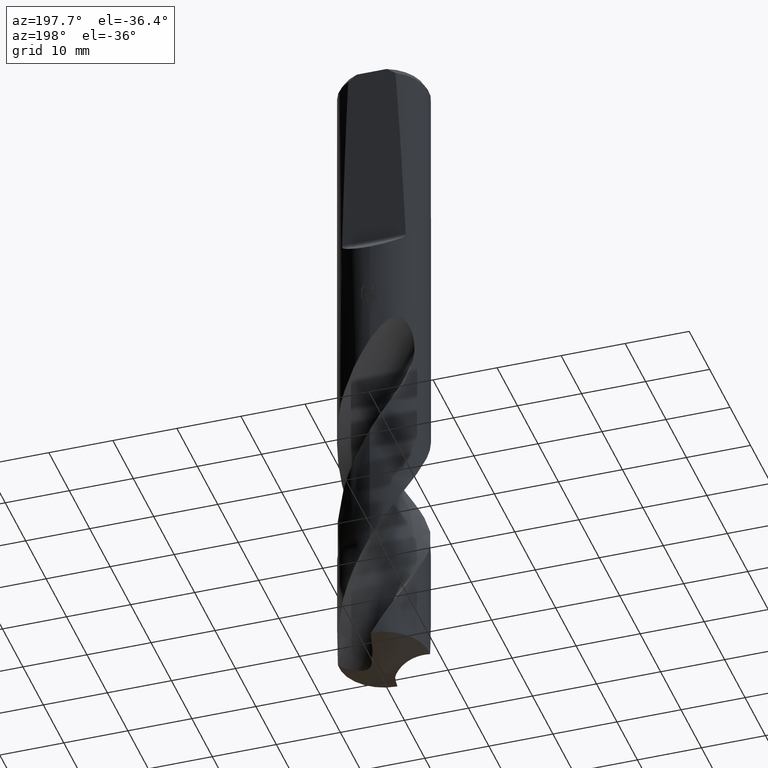
[diagram: clean part render]
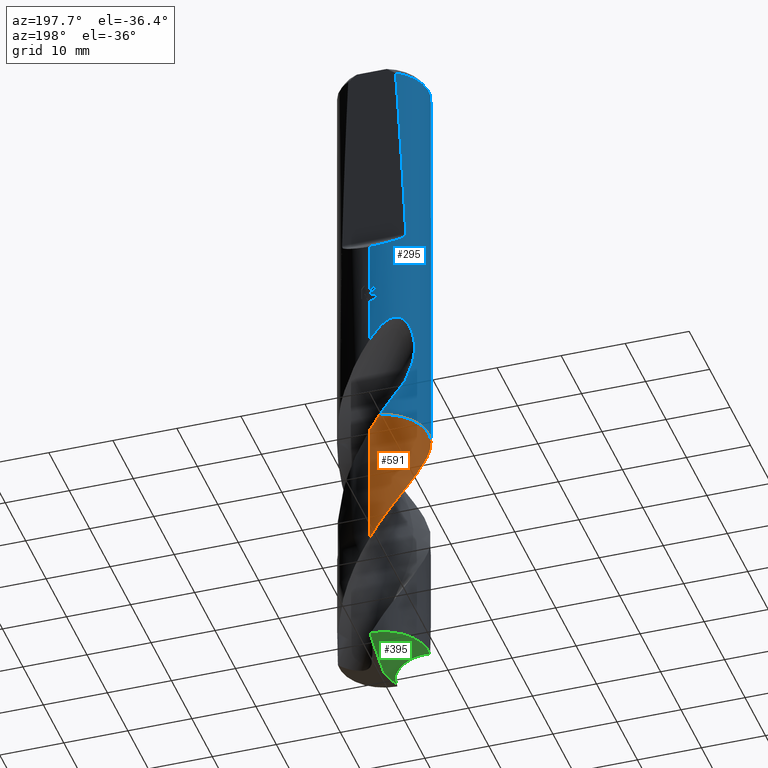
[diagram: same view with three faces highlighted in distinct colors, each labeled with its STEP entity id]
A machine part, auxiliary view with three faces highlighted in distinct colors.
Their STEP definitions:

[orange] entity #591 — the highlighted conical surface has half-angle 0 deg.
#397=EDGE_CURVE('',#583,#485,#922,.T.);
#411=EDGE_CURVE('',#497,#415,#936,.T.);
#415=VERTEX_POINT('',#940);
#455=EDGE_CURVE('',#609,#583,#982,.T.);
#485=VERTEX_POINT('',#1014);
#497=VERTEX_POINT('',#1026);
#513=EDGE_CURVE('',#485,#497,#1042,.T.);
#583=VERTEX_POINT('',#1120);
#591=ADVANCED_FACE('',(#1128),#1129,.T.);
#609=VERTEX_POINT('',#1149);
#619=VERTEX_POINT('',#1160);
#629=EDGE_CURVE('',#415,#619,#1172,.T.);
#729=EDGE_CURVE('',#619,#609,#1286,.T.);
#922=B_SPLINE_CURVE_WITH_KNOTS('',3,(#2884,#2885,#2886,#2887),.UNSPECIFIED.,.F.,.F.,(4,4),(0.0,0.0155652275913968),.UNSPECIFIED.);
#936=B_SPLINE_CURVE_WITH_KNOTS('',3,(#2918,#2919,#2920,#2921),.UNSPECIFIED.,.F.,.F.,(4,4),(0.0,0.0122954155567094),.UNSPECIFIED.);
#940=CARTESIAN_POINT('',(-1.4810754473263,6.8414191293665,-64.3050000000002));
#982=B_SPLINE_CURVE_WITH_KNOTS('',3,(#3571,#3572,#3573,#3574,#3575,#3576,#3577,#3578,#3579,#3580,#3581,#3582,#3583,#3584,#3585,#3586,#3587,#3588,#3589,#3590,#3591,#3592,#3593,#3594,#3595,#3596,#3597,#3598,#3599,#3600,#3601,#3602,#3603,#3604,#3605,#3606,#3607,#3608,#3609,#3610,#3611,#3612,#3613,#3614,#3615,#3616,#3617,#3618,#3619,#3620,#3621,#3622,#3623,#3624,#3625,#3626,#3627,#3628),.UNSPECIFIED.,.F.,.F.,(4,2,2,2,2,2,2,2,2,2,2,2,2,2,2,2,2,2,2,2,2,2,2,2,2,2,2,2,4),(0.0,3.39543451186766,5.60586435712491,6.94543109124275,8.28249579723188,10.0692441872911,10.9624324038601,11.853958782141,13.6404138657621,14.5334724137825,15.4248235927908,17.2110025318939,18.1039026545895,18.9950894885276,20.780961848582,23.4763709606844,24.7640418770248,26.10130580234,29.1952198764106,29.2863759270751,31.0537916685812,32.0137325630353,33.8105038613855,35.3858840478238,36.762907054197,38.6016613054026,40.5538676187283,43.4931155662234,46.4199670524006),.UNSPECIFIED.);
#1014=CARTESIAN_POINT('',(-6.69136512047271,-2.05529385600241,-64.3));
#1026=CARTESIAN_POINT('',(-1.48391525789918,6.84080371867034,-64.3));
#1042=CIRCLE('',#3876,6.9999);
#1120=CARTESIAN_POINT('',(-6.69221624096409,-2.05252088138234,-64.305));
#1128=FACE_OUTER_BOUND('',#5041,.T.);
#1129=CONICAL_SURFACE('',#5042,6.99995,2.49052303929666E-006);
#1149=CARTESIAN_POINT('',(-1.19753568585419E-014,6.9999561201646,-86.8334854219192));
#1160=CARTESIAN_POINT('',(-2.90876926966706E-012,6.99990641540312,-66.8759260314849));
#1172=B_SPLINE_CURVE_WITH_KNOTS('',3,(#5201,#5202,#5203,#5204,#5205,#5206,#5207,#5208,#5209,#5210,#5211,#5212,#5213,#5214,#5215,#5216,#5217,#5218,#5219,#5220,#5221,#5222,#5223,#5224,#5225,#5226,#5227,#5228,#5229,#5230,#5231,#5232,#5233,#5234,#5235,#5236,#5237,#5238,#5239,#5240,#5241,#5242,#5243,#5244,#5245,#5246,#5247,#5248,#5249,#5250,#5251,#5252,#5253,#5254),.UNSPECIFIED.,.F.,.F.,(4,2,2,2,2,2,2,2,2,2,2,2,2,2,2,2,2,2,2,2,2,2,2,2,2,2,4),(0.0,2.42463853208289,5.11825905022911,6.46930595296713,6.63663382298346,9.32046325382395,10.6685583011662,13.3613726300013,14.0328891449474,16.7220268329545,18.0666143228101,20.7620736525515,20.9296503367868,23.6145475187379,24.9618937636407,27.6537494544557,28.2381702892375,30.5049659548148,32.4952036520931,34.2363155569914,35.7604490176893,38.4274434662067,38.9275706412503,40.8041618091299,42.2120666753582,42.3439555753108,46.4382558351308),.UNSPECIFIED.);
#1286=LINE('',#7273,#7274);
#2884=CARTESIAN_POINT('',(-6.69365429614609,-2.04782632152298,-64.3134637252525));
#2885=CARTESIAN_POINT('',(-6.692892648478,-2.05031585293088,-64.3089757729136));
#2886=CARTESIAN_POINT('',(-6.69212958988812,-2.05280503148311,-64.3044878646211));
#2887=CARTESIAN_POINT('',(-6.69136512047271,-2.05529385600239,-64.3));
#2918=CARTESIAN_POINT('',(-1.48391525789916,6.84080371867032,-64.3));
#2919=CARTESIAN_POINT('',(-1.48190274552023,6.84124028427352,-64.3035435400269));
#2920=CARTESIAN_POINT('',(-1.47989005086671,6.84167595952619,-64.3070870858739));
#2921=CARTESIAN_POINT('',(-1.47787717451917,6.84211074433113,-64.3106306381503));
#3571=CARTESIAN_POINT('',(6.9583441248581,0.762526747106406,-104.452208360137));
#3572=CARTESIAN_POINT('',(6.8965724731465,1.32619396896988,-103.472687657686));
#3573=CARTESIAN_POINT('',(6.76642297032104,1.88114929313659,-102.504053485187));
#3574=CARTESIAN_POINT('',(6.44258976692898,2.76223014663446,-100.887932040987));
#3575=CARTESIAN_POINT('',(6.2875547526993,3.09897667781708,-100.248879145296));
#3576=CARTESIAN_POINT('',(5.99679329681348,3.61782489749465,-99.2253850013758));
#3577=CARTESIAN_POINT('',(5.87774308892753,3.80818493869163,-98.8398216296364));
#3578=CARTESIAN_POINT('',(5.62206528999757,4.17639838479019,-98.068049319052));
#3579=CARTESIAN_POINT('',(5.48569682259757,4.35395366914166,-97.6817975770806));
#3580=CARTESIAN_POINT('',(5.14795689624682,4.75264060095409,-96.7812685415974));
#3581=CARTESIAN_POINT('',(4.94026036960512,4.9682072302933,-96.2677359069456));
#3582=CARTESIAN_POINT('',(4.6087761251296,5.27079180562885,-95.4955492524721));
#3583=CARTESIAN_POINT('',(4.49517272634505,5.36799885078512,-95.2383236875194));
#3584=CARTESIAN_POINT('',(4.26231298029882,5.5546896111787,-94.7238305147));
#3585=CARTESIAN_POINT('',(4.14310595269587,5.64416260759012,-94.4664869099562));
#3586=CARTESIAN_POINT('',(3.77637034750601,5.90152339891628,-93.6943404187504));
#3587=CARTESIAN_POINT('',(3.52083273284047,6.05746655148066,-93.1808283939844));
#3588=CARTESIAN_POINT('',(3.12347968656498,6.26624572927748,-92.4086390493914));
#3589=CARTESIAN_POINT('',(2.98894644463472,6.33151520734197,-92.1514113955914));
#3590=CARTESIAN_POINT('',(2.7163772615965,6.45314474206828,-91.6369189229459));
#3591=CARTESIAN_POINT('',(2.57839455645556,6.5095061239335,-91.3795783662102));
#3592=CARTESIAN_POINT('',(2.15844216534316,6.66558093205415,-90.6074465466122));
#3593=CARTESIAN_POINT('',(1.87174892358338,6.75171101192336,-90.0939292649778));
#3594=CARTESIAN_POINT('',(1.43450233310021,6.85303236319009,-89.3217360209678));
#3595=CARTESIAN_POINT('',(1.28783790441801,6.88209612304556,-89.0645096918993));
#3596=CARTESIAN_POINT('',(0.993381029597937,6.93071887842151,-88.5500211673798));
#3597=CARTESIAN_POINT('',(0.845640875389063,6.95029261238305,-88.292681052884));
#3598=CARTESIAN_POINT('',(0.399897442376058,6.99491233376827,-87.5205525994668));
#3599=CARTESIAN_POINT('',(0.100756444527773,7.00562500140607,-87.0070394265178));
#3600=CARTESIAN_POINT('',(-0.649811811535705,6.98434428305668,-85.7152076877901));
#3601=CARTESIAN_POINT('',(-1.09887139126849,6.92789907072751,-84.9369480253133));
#3602=CARTESIAN_POINT('',(-1.74994053370337,6.781116550219,-83.7887370186075));
#3603=CARTESIAN_POINT('',(-1.95806724356011,6.72396827548699,-83.418081810485));
#3604=CARTESIAN_POINT('',(-2.37617816127097,6.58810892458186,-82.6612800265029));
#3605=CARTESIAN_POINT('',(-2.5855670429479,6.50876937472588,-82.275008310254));
#3606=CARTESIAN_POINT('',(-3.26514558073665,6.21334815375009,-80.9977904555766));
#3607=CARTESIAN_POINT('',(-3.71502255014007,5.95522514027253,-80.1136189131772));
#3608=CARTESIAN_POINT('',(-4.14435589934795,5.64124678368307,-79.1953742257753));
#3609=CARTESIAN_POINT('',(-4.15662657615294,5.63221156727182,-79.1690680628286));
#3610=CARTESIAN_POINT('',(-4.40673273877093,5.44678500182605,-78.6317032109648));
#3611=CARTESIAN_POINT('',(-4.63342768785084,5.25533313926962,-78.1222636233691));
#3612=CARTESIAN_POINT('',(-4.9638429787239,4.93814795566479,-77.3344421822228));
#3613=CARTESIAN_POINT('',(-5.07619943061941,4.82257078298396,-77.0573611957841));
#3614=CARTESIAN_POINT('',(-5.38699613679301,4.47997612854282,-76.2608415622692));
#3615=CARTESIAN_POINT('',(-5.57488957668972,4.24388462832105,-75.7405359297806));
#3616=CARTESIAN_POINT('',(-5.89802100740167,3.77918406474504,-74.7661811055478));
#3617=CARTESIAN_POINT('',(-6.03656160451137,3.55370294372993,-74.3120319537748));
#3618=CARTESIAN_POINT('',(-6.27168036786091,3.11743077689997,-73.459021917121));
#3619=CARTESIAN_POINT('',(-6.37111409026999,2.9087885154888,-73.0604570583488));
#3620=CARTESIAN_POINT('',(-6.57863475306438,2.41150733362076,-72.1316725559482));
#3621=CARTESIAN_POINT('',(-6.67846569801678,2.11946547007004,-71.6023774282013));
#3622=CARTESIAN_POINT('',(-6.84398691366168,1.50530761197574,-70.5080631383464));
#3623=CARTESIAN_POINT('',(-6.90684860796691,1.18369603545176,-69.9433357756233));
#3624=CARTESIAN_POINT('',(-7.0074005795601,0.370679985095477,-68.5314639713178));
#3625=CARTESIAN_POINT('',(-7.01612042449978,-0.123041312285353,-67.6890097733981));
#3626=CARTESIAN_POINT('',(-6.93000893260131,-1.10179947442418,-65.9967192717047));
#3627=CARTESIAN_POINT('',(-6.83580988479547,-1.58438690469697,-65.1490645000824));
#3628=CARTESIAN_POINT('',(-6.69216221132454,-2.05269703331493,-64.3046823919303));
#3876=AXIS2_PLACEMENT_3D('',#7693,#7694,#7695);
#5041=EDGE_LOOP('',(#7792,#7793,#7794,#7795,#7796,#7797));
#5042=AXIS2_PLACEMENT_3D('',#7798,#7799,#7800);
#5201=CARTESIAN_POINT('',(-1.48231605309676,6.84115043153617,-64.3028157406));
#5202=CARTESIAN_POINT('',(-1.08543241818439,6.92714754141986,-65.0015974509227));
#5203=CARTESIAN_POINT('',(-0.682003755208056,6.97840455710284,-65.700664908244));
#5204=CARTESIAN_POINT('',(0.173781012570545,7.01225067306067,-67.1759475750082));
#5205=CARTESIAN_POINT('',(0.624926672226586,6.98652396856223,-67.9501317657106));
#5206=CARTESIAN_POINT('',(1.2940419208945,6.88297715681841,-69.1159808817254));
#5207=CARTESIAN_POINT('',(1.51573692310627,6.83757790469686,-69.505113896801));
#5208=CARTESIAN_POINT('',(1.76197796857612,6.77458596209132,-69.9427770648114));
#5209=CARTESIAN_POINT('',(1.78907024375654,6.76748184620537,-69.9910060956537));
#5210=CARTESIAN_POINT('',(2.24996377924964,6.6436657922574,-70.8128944952736));
#5211=CARTESIAN_POINT('',(2.67165487779869,6.48560065109283,-71.5855567979758));
#5212=CARTESIAN_POINT('',(3.27805754032637,6.18903665533498,-72.7478241649815));
#5213=CARTESIAN_POINT('',(3.47587110672552,6.08014387273307,-73.135994762318));
#5214=CARTESIAN_POINT('',(4.05197522475307,5.72569831990265,-74.3009636904454));
#5215=CARTESIAN_POINT('',(4.41223900687096,5.45292771607447,-75.0757725576103));
#5216=CARTESIAN_POINT('',(4.82647907246562,5.07116868457852,-76.0456177143773));
#5217=CARTESIAN_POINT('',(4.90730049759594,4.99300058620514,-76.239131077849));
#5218=CARTESIAN_POINT('',(5.30215135656877,4.59226431814843,-77.2080388815017));
#5219=CARTESIAN_POINT('',(5.58649076869326,4.24181181795913,-77.9820345746769));
#5220=CARTESIAN_POINT('',(5.95958154541472,3.67874967938536,-79.1449377634296));
#5221=CARTESIAN_POINT('',(6.07479259040593,3.48520888247137,-79.5322659701586));
#5222=CARTESIAN_POINT('',(6.39229690177596,2.88812735097526,-80.6971779192447));
#5223=CARTESIAN_POINT('',(6.56516861709821,2.47012254512069,-81.4726443882975));
#5224=CARTESIAN_POINT('',(6.70477911466411,2.011455211893,-82.2980597271048));
#5225=CARTESIAN_POINT('',(6.71278856143122,1.98456201138058,-82.3463686719297));
#5226=CARTESIAN_POINT('',(6.84637135283357,1.52597114453977,-83.1688064720322));
#5227=CARTESIAN_POINT('',(6.93023732537459,1.08317149850801,-83.9418958026259));
#5228=CARTESIAN_POINT('',(6.99153512673312,0.410697795647012,-85.1045476106341));
#5229=CARTESIAN_POINT('',(7.00113818912948,0.185170790760578,-85.4926334879896));
#5230=CARTESIAN_POINT('',(6.99723779937759,-0.491075698364233,-86.6574260453632));
#5231=CARTESIAN_POINT('',(6.95111911978041,-0.940539487979244,-87.432156280145));
#5232=CARTESIAN_POINT('',(6.842745625668,-1.47846298222499,-88.3768494685555));
#5233=CARTESIAN_POINT('',(6.82140609649966,-1.57398914046706,-88.545308084329));
#5234=CARTESIAN_POINT('',(6.70756639210208,-2.03767405293099,-89.3675288430942));
#5235=CARTESIAN_POINT('',(6.58721724489462,-2.39837013352996,-90.0206169922325));
#5236=CARTESIAN_POINT('',(6.30739064141976,-3.05408852586843,-91.2482663007094));
#5237=CARTESIAN_POINT('',(6.15485795535187,-3.35086777814885,-91.8211978553108));
#5238=CARTESIAN_POINT('',(5.83039641070186,-3.88472002709677,-92.8973663869935));
#5239=CARTESIAN_POINT('',(5.66355660039295,-4.12416993117457,-93.3991084554417));
#5240=CARTESIAN_POINT('',(5.32351121206953,-4.55247605841336,-94.340739751099));
#5241=CARTESIAN_POINT('',(5.1539941536259,-4.7435362526653,-94.7797163040395));
#5242=CARTESIAN_POINT('',(4.6602589049663,-5.24224323684162,-95.988491280008));
#5243=CARTESIAN_POINT('',(4.31636072510516,-5.52886371624123,-96.7561404935032));
#5244=CARTESIAN_POINT('',(3.87825237114848,-5.8280305512521,-97.6694820440116));
#5245=CARTESIAN_POINT('',(3.80823506019718,-5.87402163546336,-97.8136738463047));
#5246=CARTESIAN_POINT('',(3.47166867861132,-6.08654972837413,-98.4991447411816));
#5247=CARTESIAN_POINT('',(3.19491642830076,-6.23627326061032,-99.0400887649929));
#5248=CARTESIAN_POINT('',(2.69456939851324,-6.46488533956301,-99.9873985069313));
#5249=CARTESIAN_POINT('',(2.47525342892603,-6.55199282009987,-100.393111476526));
#5250=CARTESIAN_POINT('',(2.23100960097843,-6.63497990210307,-100.837174687493));
#5251=CARTESIAN_POINT('',(2.21005795033736,-6.64198820241712,-100.875207204823));
#5252=CARTESIAN_POINT('',(1.53759746463935,-6.86339118281307,-102.094155136431));
#5253=CARTESIAN_POINT('',(0.857809582310913,-6.98106162221675,-103.271362549127));
#5254=CARTESIAN_POINT('',(0.171648917684275,-6.99789515847855,-104.452208360137));
#7273=CARTESIAN_POINT('',(-8.5807405540139E-016,6.99995,-84.3761041800683));
#7274=VECTOR('',#8008,1.0);
#7693=CARTESIAN_POINT('',(0.0,0.0,-64.3));
#7694=DIRECTION('',(0.0,0.0,-1.0));
#7695=DIRECTION('',(0.0,1.0,0.0));
#7792=ORIENTED_EDGE('',*,*,#729,.T.);
#7793=ORIENTED_EDGE('',*,*,#455,.T.);
#7794=ORIENTED_EDGE('',*,*,#397,.T.);
#7795=ORIENTED_EDGE('',*,*,#513,.T.);
#7796=ORIENTED_EDGE('',*,*,#411,.T.);
#7797=ORIENTED_EDGE('',*,*,#629,.T.);
#7798=CARTESIAN_POINT('',(0.0,0.0,-84.3761041800683));
#7799=DIRECTION('',(0.0,-0.0,-1.0));
#7800=DIRECTION('',(0.0,1.0,0.0));
#8008=DIRECTION('',(-3.04991033826056E-022,2.49052303929409E-006,-0.999999999996899));

[blue] entity #295 — the highlighted cylindrical surface (partial cylindrical patch) has radius 7 mm, axis along (-0, -0, 1).
#293=EDGE_CURVE('',#743,#543,#810,.T.);
#295=ADVANCED_FACE('',(#812),#813,.T.);
#297=EDGE_CURVE('',#369,#449,#815,.T.);
#325=EDGE_CURVE('',#449,#635,#844,.T.);
#341=VERTEX_POINT('',#861);
#345=VERTEX_POINT('',#865);
#353=VERTEX_POINT('',#873);
#369=VERTEX_POINT('',#891);
#383=EDGE_CURVE('',#473,#527,#907,.T.);
#391=EDGE_CURVE('',#635,#643,#915,.T.);
#407=EDGE_CURVE('',#553,#555,#932,.T.);
#427=EDGE_CURVE('',#643,#345,#952,.T.);
#429=EDGE_CURVE('',#353,#743,#954,.T.);
#433=EDGE_CURVE('',#533,#611,#958,.T.);
#439=VERTEX_POINT('',#964);
#443=EDGE_CURVE('',#439,#353,#968,.T.);
#449=VERTEX_POINT('',#975);
#473=VERTEX_POINT('',#1002);
#481=EDGE_CURVE('',#751,#553,#1010,.T.);
#509=EDGE_CURVE('',#569,#473,#1038,.T.);
#527=VERTEX_POINT('',#1057);
#533=VERTEX_POINT('',#1064);
#541=EDGE_CURVE('',#575,#341,#1073,.T.);
#543=VERTEX_POINT('',#1075);
#553=VERTEX_POINT('',#1087);
#555=VERTEX_POINT('',#1089);
#557=VERTEX_POINT('',#1091);
#569=VERTEX_POINT('',#1104);
#575=VERTEX_POINT('',#1112);
#611=VERTEX_POINT('',#1151);
#635=VERTEX_POINT('',#1178);
#643=VERTEX_POINT('',#1188);
#693=EDGE_CURVE('',#341,#439,#1249,.T.);
#697=EDGE_CURVE('',#555,#557,#1253,.T.);
#709=EDGE_CURVE('',#345,#751,#1265,.T.);
#735=EDGE_CURVE('',#557,#575,#1293,.T.);
#739=EDGE_CURVE('',#611,#569,#1297,.T.);
#743=VERTEX_POINT('',#1301);
#745=EDGE_CURVE('',#543,#533,#1303,.T.);
#751=VERTEX_POINT('',#1310);
#763=EDGE_CURVE('',#369,#527,#1322,.T.);
#810=ELLIPSE('',#1841,7.80449902430002,7.0);
#812=FACE_OUTER_BOUND('',#1843,.T.);
#813=CYLINDRICAL_SURFACE('',#1844,7.0);
#815=B_SPLINE_CURVE_WITH_KNOTS('',3,(#1847,#1848,#1849,#1850,#1851,#1852,#1853,#1854,#1855,#1856,#1857,#1858,#1859,#1860),.UNSPECIFIED.,.F.,.F.,(4,2,2,2,2,2,4),(0.0,1.9451827829186,3.38152269793438,4.41054124769396,5.38404337641816,7.0850770684755,8.90217717390362),.UNSPECIFIED.);
#844=B_SPLINE_CURVE_WITH_KNOTS('',3,(#2489,#2490,#2491,#2492,#2493,#2494,#2495,#2496,#2497,#2498,#2499,#2500,#2501,#2502,#2503,#2504,#2505,#2506,#2507,#2508,#2509,#2510,#2511,#2512,#2513,#2514,#2515,#2516,#2517,#2518),.UNSPECIFIED.,.F.,.F.,(4,2,2,2,2,2,2,2,2,2,2,2,2,2,4),(0.0,3.42960241729036,5.30224694903621,6.99839136254973,8.96890247937527,11.3359379345839,13.3874876799547,14.3171806601562,14.9966727742058,15.6396709984164,16.4553525652528,17.6487277691431,19.3452509445065,20.4554393011994,21.6221718049992),.UNSPECIFIED.);
#861=CARTESIAN_POINT('',(-0.562333990228013,6.97737633236407,-40.3171221986971));
#865=CARTESIAN_POINT('',(-3.68619322486681,5.95079654407257,-1.0));
#873=CARTESIAN_POINT('',(1.56163949104066E-015,7.0,-41.5000801551881));
#891=CARTESIAN_POINT('',(-6.69144860367263,-2.05536264060814,-64.3));
#907=B_SPLINE_CURVE_WITH_KNOTS('',3,(#2841,#2842,#2843,#2844,#2845,#2846,#2847,#2848,#2849,#2850),.UNSPECIFIED.,.F.,.F.,(4,2,2,2,4),(0.0,1.72184480506986,3.12800785480255,4.20979182956114,7.43064882381328),.UNSPECIFIED.);
#915=LINE('',#2861,#2862);
#932=ELLIPSE('',#2913,10.2639542994774,7.0);
#952=CIRCLE('',#2981,7.0);
#954=LINE('',#2984,#2985);
#958=LINE('',#3044,#3045);
#964=CARTESIAN_POINT('',(-1.0350734039088,6.92305012610198,-40.3171221986971));
#968=B_SPLINE_CURVE_WITH_KNOTS('',3,(#3072,#3073,#3074,#3075,#3076,#3077,#3078,#3079,#3080,#3081,#3082,#3083,#3084,#3085),.UNSPECIFIED.,.F.,.F.,(4,2,2,2,2,2,4),(3.12645802078654,3.57295808501897,4.01945814925139,4.46595821348382,4.91200155349149,5.35804489349917,5.80533959969527),.UNSPECIFIED.);
#975=CARTESIAN_POINT('',(-4.46049730765723,-5.39480896495721,-57.589));
#1002=CARTESIAN_POINT('',(-4.86554139901205,5.03254477322357,-57.589));
#1010=B_SPLINE_CURVE_WITH_KNOTS('',3,(#3709,#3710,#3711,#3712,#3713,#3714,#3715,#3716,#3717,#3718),.UNSPECIFIED.,.F.,.F.,(4,2,2,2,4),(5.62740999265942,5.95523937907157,6.28306876548372,6.61089815189586,7.11459471525511),.UNSPECIFIED.);
#1038=B_SPLINE_CURVE_WITH_KNOTS('',3,(#3862,#3863,#3864,#3865),.UNSPECIFIED.,.F.,.F.,(4,4),(0.0,4.02303930011819),.UNSPECIFIED.);
#1057=CARTESIAN_POINT('',(-1.48394350816976,6.84089991628008,-64.3));
#1064=CARTESIAN_POINT('',(9.85631653213508E-016,7.0,-43.0310253601033));
#1073=B_SPLINE_CURVE_WITH_KNOTS('',3,(#4252,#4253,#4254,#4255,#4256,#4257,#4258,#4259,#4260,#4261,#4262,#4263,#4264,#4265,#4266,#4267,#4268,#4269,#4270,#4271,#4272,#4273,#4274,#4275,#4276,#4277,#4278),.UNSPECIFIED.,.F.,.F.,(4,2,3,2,2,2,2,2,2,2,2,2,4),(-0.542036445993936,-0.271018222996967,0.0,0.271018222996968,0.542036445993935,0.813346115303562,1.08465578461319,1.35548019069071,1.62630459676823,1.89727226982465,2.16823994288107,2.4392076159375,2.71017528899392),.UNSPECIFIED.);
#1075=CARTESIAN_POINT('',(-1.337052752443,6.87111999147043,-42.3720803908795));
#1087=CARTESIAN_POINT('',(-4.62951370980335,5.2504859594844,-31.1252435197041));
#1089=CARTESIAN_POINT('',(-8.57224447675664E-016,7.0,-33.0013676345019));
#1091=CARTESIAN_POINT('',(-2.74802050569022E-015,7.0,-41.0232688117743));
#1104=CARTESIAN_POINT('',(-5.69549514320614,4.06956202480259,-53.7559384073878));
#1112=CARTESIAN_POINT('',(-0.486378944383046,6.98308209334967,-40.6432837483006));
#1151=CARTESIAN_POINT('',(-2.07343704380393E-012,7.00000000000001,-50.1481669256074));
#1178=CARTESIAN_POINT('',(2.07654566827288E-012,-7.0,-50.1481669256074));
#1188=CARTESIAN_POINT('',(8.57224447675664E-016,-7.0,-1.0));
#1249=CIRCLE('',#6646,7.0);
#1253=LINE('',#6694,#6695);
#1265=ELLIPSE('',#6712,200.575958434908,7.0);
#1293=B_SPLINE_CURVE_WITH_KNOTS('',3,(#7282,#7283,#7284,#7285,#7286,#7287,#7288,#7289,#7290,#7291,#7292,#7293,#7294,#7295,#7296,#7297,#7298,#7299,#7300,#7301,#7302,#7303,#7304,#7305,#7306,#7307,#7308),.UNSPECIFIED.,.F.,.F.,(4,2,3,2,2,2,2,2,2,2,2,2,4),(-0.542036445993936,-0.271018222996967,0.0,0.271018222996968,0.542036445993935,0.813346115303562,1.08465578461319,1.35548019069071,1.62630459676823,1.89727226982465,2.16823994288107,2.4392076159375,2.71017528899392),.UNSPECIFIED.);
#1297=B_SPLINE_CURVE_WITH_KNOTS('',3,(#7343,#7344,#7345,#7346,#7347,#7348,#7349,#7350,#7351,#7352,#7353,#7354,#7355,#7356,#7357,#7358,#7359,#7360,#7361,#7362,#7363,#7364,#7365,#7366,#7367,#7368,#7369,#7370,#7371,#7372),.UNSPECIFIED.,.F.,.F.,(4,2,2,2,2,2,2,2,2,2,2,2,2,2,4),(0.0,3.42960241729033,5.30224694903611,6.99839136254967,8.96890247937512,11.3359379345835,13.3874876799543,14.3171806601556,14.9966727742052,15.6396709984158,16.4553525652521,17.6487277691424,19.345250944506,20.4554393011992,21.6221718049994),.UNSPECIFIED.);
#1301=CARTESIAN_POINT('',(-8.57224447675664E-016,7.0,-41.7128911336578));
#1303=B_SPLINE_CURVE_WITH_KNOTS('',3,(#7406,#7407,#7408,#7409,#7410,#7411,#7412,#7413,#7414,#7415,#7416,#7417,#7418,#7419,#7420,#7421),.UNSPECIFIED.,.F.,.F.,(4,2,2,2,2,2,2,4),(5.85148113241198,6.15947819753677,6.46754648496164,6.77561477238651,7.08368305981137,7.39175134723624,7.69959009287517,8.00742883851411),.UNSPECIFIED.);
#1310=CARTESIAN_POINT('',(-4.97056559808667,4.92884140900449,-30.2649660915861));
#1322=CIRCLE('',#7443,7.0);
#1841=AXIS2_PLACEMENT_3D('',#7528,#7529,#7530);
#1843=EDGE_LOOP('',(#7532,#7533,#7534,#7535,#7536,#7537,#7538,#7539,#7540,#7541,#7542,#7543,#7544,#7545,#7546,#7547,#7548,#7549,#7550,#7551));
#1844=AXIS2_PLACEMENT_3D('',#7552,#7553,#7554);
#1847=CARTESIAN_POINT('',(-6.69144860367262,-2.05536264060813,-64.3));
#1848=CARTESIAN_POINT('',(-6.59591139504917,-2.36639404139927,-63.7391548991452));
#1849=CARTESIAN_POINT('',(-6.47787799210923,-2.67341129224145,-63.1763521722709));
#1850=CARTESIAN_POINT('',(-6.23291009488896,-3.19543830915819,-62.2031630259271));
#1851=CARTESIAN_POINT('',(-6.11738702830057,-3.41168238523792,-61.7957902130703));
#1852=CARTESIAN_POINT('',(-5.8960799425789,-3.77730901776456,-61.0461534134703));
#1853=CARTESIAN_POINT('',(-5.80238719513786,-3.91923206640351,-60.7376275881678));
#1854=CARTESIAN_POINT('',(-5.61345363457113,-4.1850050892297,-60.1244403960143));
#1855=CARTESIAN_POINT('',(-5.55606207892118,-4.25950079524586,-59.9336442417219));
#1856=CARTESIAN_POINT('',(-5.36013898140775,-4.50656511599813,-59.3449405568858));
#1857=CARTESIAN_POINT('',(-5.21986348424436,-4.67000849152014,-58.9926413427591));
#1858=CARTESIAN_POINT('',(-4.88153314513781,-5.02339373161047,-58.278931966661));
#1859=CARTESIAN_POINT('',(-4.68422765363351,-5.20982584278351,-57.9284153820524));
#1860=CARTESIAN_POINT('',(-4.46049730765723,-5.39480896495721,-57.589));
#2489=CARTESIAN_POINT('',(-4.46049730765722,-5.39480896495721,-57.589));
#2490=CARTESIAN_POINT('',(-3.99875241302369,-5.77658557145354,-56.6153746319502));
#2491=CARTESIAN_POINT('',(-3.46785065342962,-6.11595840580533,-55.707641291));
#2492=CARTESIAN_POINT('',(-2.54211638207962,-6.53193112555013,-54.1912110042948));
#2493=CARTESIAN_POINT('',(-2.20899351363555,-6.65159082860243,-53.6576795807597));
#2494=CARTESIAN_POINT('',(-1.56410978287001,-6.83042634064535,-52.6249013659759));
#2495=CARTESIAN_POINT('',(-1.25522828292044,-6.89360849612103,-52.1304684404969));
#2496=CARTESIAN_POINT('',(-0.586630013473711,-6.9847958620532,-51.0648345366995));
#2497=CARTESIAN_POINT('',(-0.221328414189053,-7.00620409093186,-50.4852922875691));
#2498=CARTESIAN_POINT('',(0.589913189621369,-6.98913969058714,-49.2454598950402));
#2499=CARTESIAN_POINT('',(1.07089761039797,-6.93636044042054,-48.5399816447973));
#2500=CARTESIAN_POINT('',(1.99841378101102,-6.72321293724981,-47.3766968523732));
#2501=CARTESIAN_POINT('',(2.51157116919113,-6.56082158087736,-46.8090596501611));
#2502=CARTESIAN_POINT('',(3.28823006560048,-6.18545919917171,-46.2775242368696));
#2503=CARTESIAN_POINT('',(3.5453094976296,-6.0437511576685,-46.1461604794445));
#2504=CARTESIAN_POINT('',(3.99577172663387,-5.75197084700401,-46.045249693686));
#2505=CARTESIAN_POINT('',(4.18053156521485,-5.61909192001386,-46.0433655269851));
#2506=CARTESIAN_POINT('',(4.52465673011254,-5.34538909644157,-46.1316838255335));
#2507=CARTESIAN_POINT('',(4.67515989991146,-5.21319611052673,-46.2144899892245));
#2508=CARTESIAN_POINT('',(4.98143217538999,-4.92350553321156,-46.4735808757864));
#2509=CARTESIAN_POINT('',(5.12312758693302,-4.77338062435196,-46.6648728460269));
#2510=CARTESIAN_POINT('',(5.41336559797622,-4.44557193904353,-47.1886896164334));
#2511=CARTESIAN_POINT('',(5.55209358585008,-4.26705669110065,-47.5772068430886));
#2512=CARTESIAN_POINT('',(5.81296641473949,-3.9086004098361,-48.6642348756742));
#2513=CARTESIAN_POINT('',(5.90727795600317,-3.755915361236,-49.4384017162248));
#2514=CARTESIAN_POINT('',(5.95395815136333,-3.68124917922929,-50.8711925135309));
#2515=CARTESIAN_POINT('',(5.94298232310087,-3.69944810068394,-51.4417996543475));
#2516=CARTESIAN_POINT('',(5.86545866885975,-3.82123898119621,-52.5998471235868));
#2517=CARTESIAN_POINT('',(5.79623923784892,-3.92856712209619,-53.1829287520956));
#2518=CARTESIAN_POINT('',(5.69549514320614,-4.06956202480258,-53.7559384073879));
#2841=CARTESIAN_POINT('',(-4.86554139901205,5.03254477322356,-57.589));
#2842=CARTESIAN_POINT('',(-4.66885724169504,5.22270203025334,-58.0935514588315));
#2843=CARTESIAN_POINT('',(-4.45789848179928,5.40526508049023,-58.5936620583872));
#2844=CARTESIAN_POINT('',(-4.02360960033703,5.73327330778014,-59.5207677140023));
#2845=CARTESIAN_POINT('',(-3.82655949326751,5.86695924558194,-59.9121206817766));
#2846=CARTESIAN_POINT('',(-3.44377150196893,6.09739116090478,-60.6720997817183));
#2847=CARTESIAN_POINT('',(-3.27431060680221,6.18996328199152,-61.0050995131352));
#2848=CARTESIAN_POINT('',(-2.59076714419784,6.52792075297999,-62.3243983173494));
#2849=CARTESIAN_POINT('',(-2.04603771465923,6.71896916756163,-63.3103052675168));
#2850=CARTESIAN_POINT('',(-1.4839435081698,6.84089991628006,-64.3));
#2861=CARTESIAN_POINT('',(8.57224447675664E-016,-7.0,-54.65));
#2862=VECTOR('',#7633,1.0);
#2913=AXIS2_PLACEMENT_3D('',#7647,#7648,#7649);
#2981=AXIS2_PLACEMENT_3D('',#7650,#7651,#7652);
#2984=CARTESIAN_POINT('',(-8.57224447675664E-016,7.0,-54.65));
#2985=VECTOR('',#7653,1.0);
#3044=CARTESIAN_POINT('',(-8.57224447675664E-016,7.0,-54.65));
#3045=VECTOR('',#7654,1.0);
#3072=CARTESIAN_POINT('',(-0.944870490172538,6.9359368333918,-39.8731204234947));
#3073=CARTESIAN_POINT('',(-1.00531163422684,6.92770304395635,-40.0188717617141));
#3074=CARTESIAN_POINT('',(-1.03510901790186,6.92304480131815,-40.1774685059886));
#3075=CARTESIAN_POINT('',(-1.03510901790186,6.92304480131815,-40.4751352154769));
#3076=CARTESIAN_POINT('',(-1.00531163422684,6.92770304395635,-40.6337319597515));
#3077=CARTESIAN_POINT('',(-0.88442934611823,6.94417062282726,-40.9252346361903));
#3078=CARTESIAN_POINT('',(-0.793356356552045,6.95569708995322,-41.0581614200253));
#3079=CARTESIAN_POINT('',(-0.583429192028742,6.97644063420352,-41.267959298194));
#3080=CARTESIAN_POINT('',(-0.450541813315198,6.98700760486651,-41.3589251547042));
#3081=CARTESIAN_POINT('',(-0.159180423516804,6.99970890737869,-41.4796356128542));
#3082=CARTESIAN_POINT('',(-0.000690145397732517,7.00157879318387,-41.5093686300866));
#3083=CARTESIAN_POINT('',(0.297022677176191,6.99528468420279,-41.5093686300866));
#3084=CARTESIAN_POINT('',(0.455705944073458,6.98668220277279,-41.4794861861744));
#3085=CARTESIAN_POINT('',(0.601439123955211,6.97411435095353,-41.4190056749212));
#3709=CARTESIAN_POINT('',(-4.92400874566459,4.97535303999813,-29.9734531276827));
#3710=CARTESIAN_POINT('',(-4.9555267775292,4.94416025605754,-30.0813070277659));
#3711=CARTESIAN_POINT('',(-4.97129036280753,4.9281104014274,-30.1975690254917));
#3712=CARTESIAN_POINT('',(-4.97129036280753,4.9281104014274,-30.4161219497665));
#3713=CARTESIAN_POINT('',(-4.9555267775292,4.94416025605754,-30.5323839474923));
#3714=CARTESIAN_POINT('',(-4.89249071380031,5.00654582393862,-30.7480917476589));
#3715=CARTESIAN_POINT('',(-4.84524668311787,5.05260711780599,-30.8476251319948));
#3716=CARTESIAN_POINT('',(-4.71123594115441,5.17848040625279,-31.0550454598825));
#3717=CARTESIAN_POINT('',(-4.60286230980999,5.27630783208741,-31.1622522444136));
#3718=CARTESIAN_POINT('',(-4.47951498692558,5.37902830276149,-31.2443293592015));
#3862=CARTESIAN_POINT('',(-5.69549514325876,4.06956202472895,-53.7559384074168));
#3863=CARTESIAN_POINT('',(-5.46982091302963,4.38540104485403,-55.0395399770848));
#3864=CARTESIAN_POINT('',(-5.19782314581515,4.71128968895515,-56.330780206636));
#3865=CARTESIAN_POINT('',(-4.86554139901205,5.03254477322357,-57.589));
#4252=CARTESIAN_POINT('',(0.664987495682015,6.96834210057074,-39.8134609607519));
#4253=CARTESIAN_POINT('',(0.728704683046946,6.96226158209931,-39.8772132619402));
#4254=CARTESIAN_POINT('',(0.783980930146228,6.9560576278509,-39.9579629630826));
#4255=CARTESIAN_POINT('',(0.857331586478981,6.94739853321816,-40.1350040779371));
#4256=CARTESIAN_POINT('',(0.875400981188567,6.94504666090402,-40.2313026049211));
#4257=CARTESIAN_POINT('',(0.875400981188567,6.94504666090402,-40.3216420125868));
#4258=CARTESIAN_POINT('',(0.875400981188567,6.94504666090402,-40.4119814202524));
#4259=CARTESIAN_POINT('',(0.857331586478977,6.94739853321816,-40.5082799472365));
#4260=CARTESIAN_POINT('',(0.783980930146221,6.9560576278509,-40.685321062091));
#4261=CARTESIAN_POINT('',(0.728704683046946,6.96226158209931,-40.7660707632334));
#4262=CARTESIAN_POINT('',(0.601201788425301,6.97442915788175,-40.8936439232623));
#4263=CARTESIAN_POINT('',(0.520416779900602,6.98119186147897,-40.9489826210903));
#4264=CARTESIAN_POINT('',(0.343290106212511,6.99214025419339,-41.0224214149619));
#4265=CARTESIAN_POINT('',(0.246940334999491,6.99622750070997,-41.0405166027747));
#4266=CARTESIAN_POINT('',(0.06627416096803,7.00026837167467,-41.0405166027747));
#4267=CARTESIAN_POINT('',(-0.0300009021098098,7.00049584323788,-41.0224792632517));
#4268=CARTESIAN_POINT('',(-0.207086828462645,6.99749649166544,-40.9491375975081));
#4269=CARTESIAN_POINT('',(-0.287900132119289,6.99436879728022,-40.8938351432694));
#4270=CARTESIAN_POINT('',(-0.415543530410312,6.98794742768012,-40.7662368077791));
#4271=CARTESIAN_POINT('',(-0.470882886829905,6.98424107836303,-40.6854131216791));
#4272=CARTESIAN_POINT('',(-0.544286323056282,6.97890439374672,-40.5082789756897));
#4273=CARTESIAN_POINT('',(-0.562348199187247,6.97737518719403,-40.4119645702723));
#4274=CARTESIAN_POINT('',(-0.562348199187247,6.97737518719403,-40.2313194549013));
#4275=CARTESIAN_POINT('',(-0.544286323056282,6.97890439374672,-40.1350050494839));
#4276=CARTESIAN_POINT('',(-0.470882886829905,6.98424107836303,-39.9578709034945));
#4277=CARTESIAN_POINT('',(-0.415543530410313,6.98794742768012,-39.8770472173944));
#4278=CARTESIAN_POINT('',(-0.351704954786946,6.99115896148688,-39.8132311791295));
#6646=AXIS2_PLACEMENT_3D('',#7992,#7993,#7994);
#6694=CARTESIAN_POINT('',(-8.57224447675664E-016,7.0,-54.65));
#6695=VECTOR('',#7995,1.0);
#6712=AXIS2_PLACEMENT_3D('',#7998,#7999,#8000);
#7282=CARTESIAN_POINT('',(0.664987495682015,6.96834210057074,-39.8134609607519));
#7283=CARTESIAN_POINT('',(0.728704683046946,6.96226158209931,-39.8772132619402));
#7284=CARTESIAN_POINT('',(0.783980930146228,6.9560576278509,-39.9579629630826));
#7285=CARTESIAN_POINT('',(0.857331586478981,6.94739853321816,-40.1350040779371));
#7286=CARTESIAN_POINT('',(0.875400981188567,6.94504666090402,-40.2313026049211));
#7287=CARTESIAN_POINT('',(0.875400981188567,6.94504666090402,-40.3216420125868));
#7288=CARTESIAN_POINT('',(0.875400981188567,6.94504666090402,-40.4119814202524));
#7289=CARTESIAN_POINT('',(0.857331586478977,6.94739853321816,-40.5082799472365));
#7290=CARTESIAN_POINT('',(0.783980930146221,6.9560576278509,-40.685321062091));
#7291=CARTESIAN_POINT('',(0.728704683046946,6.96226158209931,-40.7660707632334));
#7292=CARTESIAN_POINT('',(0.601201788425301,6.97442915788175,-40.8936439232623));
#7293=CARTESIAN_POINT('',(0.520416779900602,6.98119186147897,-40.9489826210903));
#7294=CARTESIAN_POINT('',(0.343290106212511,6.99214025419339,-41.0224214149619));
#7295=CARTESIAN_POINT('',(0.246940334999491,6.99622750070997,-41.0405166027747));
#7296=CARTESIAN_POINT('',(0.06627416096803,7.00026837167467,-41.0405166027747));
#7297=CARTESIAN_POINT('',(-0.0300009021098098,7.00049584323788,-41.0224792632517));
#7298=CARTESIAN_POINT('',(-0.207086828462645,6.99749649166544,-40.9491375975081));
#7299=CARTESIAN_POINT('',(-0.287900132119289,6.99436879728022,-40.8938351432694));
#7300=CARTESIAN_POINT('',(-0.415543530410312,6.98794742768012,-40.7662368077791));
#7301=CARTESIAN_POINT('',(-0.470882886829905,6.98424107836303,-40.6854131216791));
#7302=CARTESIAN_POINT('',(-0.544286323056282,6.97890439374672,-40.5082789756897));
#7303=CARTESIAN_POINT('',(-0.562348199187247,6.97737518719403,-40.4119645702723));
#7304=CARTESIAN_POINT('',(-0.562348199187247,6.97737518719403,-40.2313194549013));
#7305=CARTESIAN_POINT('',(-0.544286323056282,6.97890439374672,-40.1350050494839));
#7306=CARTESIAN_POINT('',(-0.470882886829905,6.98424107836303,-39.9578709034945));
#7307=CARTESIAN_POINT('',(-0.415543530410313,6.98794742768012,-39.8770472173944));
#7308=CARTESIAN_POINT('',(-0.351704954786946,6.99115896148688,-39.8132311791295));
#7343=CARTESIAN_POINT('',(4.46049730765722,5.39480896495721,-57.589));
#7344=CARTESIAN_POINT('',(3.99875241302369,5.77658557145354,-56.6153746319501));
#7345=CARTESIAN_POINT('',(3.46785065342962,6.11595840580533,-55.707641291));
#7346=CARTESIAN_POINT('',(2.54211638207963,6.53193112555013,-54.1912110042948));
#7347=CARTESIAN_POINT('',(2.20899351363557,6.65159082860243,-53.6576795807597));
#7348=CARTESIAN_POINT('',(1.56410978286997,6.83042634064536,-52.6249013659758));
#7349=CARTESIAN_POINT('',(1.25522828292037,6.89360849612104,-52.1304684404968));
#7350=CARTESIAN_POINT('',(0.586630013473824,6.98479586205318,-51.0648345366996));
#7351=CARTESIAN_POINT('',(0.221328414189102,7.00620409093187,-50.4852922875691));
#7352=CARTESIAN_POINT('',(-0.589913189621421,6.98913969058714,-49.2454598950401));
#7353=CARTESIAN_POINT('',(-1.07089761039799,6.93636044042054,-48.5399816447972));
#7354=CARTESIAN_POINT('',(-1.99841378101106,6.7232129372498,-47.3766968523731));
#7355=CARTESIAN_POINT('',(-2.51157116919114,6.56082158087735,-46.8090596501611));
#7356=CARTESIAN_POINT('',(-3.28823006560042,6.18545919917174,-46.2775242368697));
#7357=CARTESIAN_POINT('',(-3.54530949762958,6.04375115766852,-46.1461604794444));
#7358=CARTESIAN_POINT('',(-3.99577172663393,5.75197084700398,-46.0452496936859));
#7359=CARTESIAN_POINT('',(-4.18053156521488,5.61909192001384,-46.043365526985));
#7360=CARTESIAN_POINT('',(-4.52465673011253,5.34538909644158,-46.1316838255335));
#7361=CARTESIAN_POINT('',(-4.67515989991144,5.21319611052676,-46.2144899892245));
#7362=CARTESIAN_POINT('',(-4.98143217539,4.92350553321156,-46.4735808757864));
#7363=CARTESIAN_POINT('',(-5.12312758693303,4.77338062435195,-46.6648728460269));
#7364=CARTESIAN_POINT('',(-5.41336559797623,4.44557193904352,-47.1886896164334));
#7365=CARTESIAN_POINT('',(-5.55209358585008,4.26705669110064,-47.5772068430886));
#7366=CARTESIAN_POINT('',(-5.81296641473951,3.90860040983607,-48.6642348756743));
#7367=CARTESIAN_POINT('',(-5.90727795600318,3.755915361236,-49.438401716225));
#7368=CARTESIAN_POINT('',(-5.95395815136333,3.68124917922929,-50.8711925135309));
#7369=CARTESIAN_POINT('',(-5.94298232310087,3.69944810068394,-51.4417996543475));
#7370=CARTESIAN_POINT('',(-5.86545866885975,3.82123898119621,-52.5998471235868));
#7371=CARTESIAN_POINT('',(-5.79623923784893,3.92856712209618,-53.1829287520955));
#7372=CARTESIAN_POINT('',(-5.69549514320614,4.06956202480258,-53.7559384073878));
#7406=CARTESIAN_POINT('',(-1.37956950013868,6.862709959942,-42.3118860272267));
#7407=CARTESIAN_POINT('',(-1.31985944512012,6.87471311484171,-42.4006164760917));
#7408=CARTESIAN_POINT('',(-1.2521751980669,6.88748156909145,-42.4820605072323));
#7409=CARTESIAN_POINT('',(-1.10803116428717,6.91213530701744,-42.6262319850711));
#7410=CARTESIAN_POINT('',(-1.02657943157941,6.92489379632338,-42.6939460667801));
#7411=CARTESIAN_POINT('',(-0.849091702963374,6.94888931409906,-42.8134214863536));
#7412=CARTESIAN_POINT('',(-0.753058262458167,6.96010382408442,-42.8651911418259));
#7413=CARTESIAN_POINT('',(-0.552521113580874,6.97888690311178,-42.9484382818491));
#7414=CARTESIAN_POINT('',(-0.447850922696022,6.98645535289821,-42.9799817262365));
#7415=CARTESIAN_POINT('',(-0.237116900888673,6.99677814585499,-43.0214038898241));
#7416=CARTESIAN_POINT('',(-0.131050755579278,6.99952647100642,-43.0312723335086));
#7417=CARTESIAN_POINT('',(0.0742499035867442,7.00035830241466,-43.0312723335086));
#7418=CARTESIAN_POINT('',(0.180258797232803,6.99847263330913,-43.0214183295518));
#7419=CARTESIAN_POINT('',(0.390914314103444,6.98987113130027,-42.9800352841335));
#7420=CARTESIAN_POINT('',(0.495563147536711,6.98316134581655,-42.9485162373715));
#7421=CARTESIAN_POINT('',(0.595822105081569,6.97459647715165,-42.9069156645199));
#7443=AXIS2_PLACEMENT_3D('',#8027,#8028,#8029);
#7528=CARTESIAN_POINT('',(0.0,0.0,-41.7128911336578));
#7529=DIRECTION('',(-0.442195774284071,0.0,0.896918556617774));
#7530=DIRECTION('',(0.896918556617774,-0.0,0.442195774284071));
#7532=ORIENTED_EDGE('',*,*,#697,.T.);
#7533=ORIENTED_EDGE('',*,*,#735,.T.);
#7534=ORIENTED_EDGE('',*,*,#541,.T.);
#7535=ORIENTED_EDGE('',*,*,#693,.T.);
#7536=ORIENTED_EDGE('',*,*,#443,.T.);
#7537=ORIENTED_EDGE('',*,*,#429,.T.);
#7538=ORIENTED_EDGE('',*,*,#293,.T.);
#7539=ORIENTED_EDGE('',*,*,#745,.T.);
#7540=ORIENTED_EDGE('',*,*,#433,.T.);
#7541=ORIENTED_EDGE('',*,*,#739,.T.);
#7542=ORIENTED_EDGE('',*,*,#509,.T.);
#7543=ORIENTED_EDGE('',*,*,#383,.T.);
#7544=ORIENTED_EDGE('',*,*,#763,.F.);
#7545=ORIENTED_EDGE('',*,*,#297,.T.);
#7546=ORIENTED_EDGE('',*,*,#325,.T.);
#7547=ORIENTED_EDGE('',*,*,#391,.T.);
#7548=ORIENTED_EDGE('',*,*,#427,.T.);
#7549=ORIENTED_EDGE('',*,*,#709,.T.);
#7550=ORIENTED_EDGE('',*,*,#481,.T.);
#7551=ORIENTED_EDGE('',*,*,#407,.T.);
#7552=CARTESIAN_POINT('',(0.0,0.0,-54.65));
#7553=DIRECTION('',(-0.0,-0.0,1.0));
#7554=DIRECTION('',(0.0,1.0,0.0));
#7633=DIRECTION('',(-0.0,-0.0,1.0));
#7647=CARTESIAN_POINT('',(0.0,0.0,-25.4947866643291));
#7648=DIRECTION('',(0.0,-0.73135370161917,-0.681998360062499));
#7649=DIRECTION('',(0.0,0.681998360062499,-0.73135370161917));
#7650=CARTESIAN_POINT('',(0.0,0.0,-1.0));
#7651=DIRECTION('',(0.0,0.0,-1.0));
#7652=DIRECTION('',(0.0,1.0,0.0));
#7653=DIRECTION('',(0.0,0.0,-1.0));
#7654=DIRECTION('',(0.0,0.0,-1.0));
#7992=CARTESIAN_POINT('',(0.0,0.0,-40.3171221986971));
#7993=DIRECTION('',(0.0,-0.0,1.0));
#7994=DIRECTION('',(0.0,1.0,0.0));
#7995=DIRECTION('',(0.0,0.0,-1.0));
#7998=CARTESIAN_POINT('',(0.0,0.0,-171.408517071162));
#7999=DIRECTION('',(0.0,-0.999390827019096,0.0348994967025007));
#8000=DIRECTION('',(0.0,0.0348994967025007,0.999390827019096));
#8027=CARTESIAN_POINT('',(0.0,0.0,-64.3));
#8028=DIRECTION('',(0.0,0.0,-1.0));
#8029=DIRECTION('',(0.0,1.0,0.0));

[green] entity #395 — the highlighted conical surface has half-angle 70 deg.
#283=VERTEX_POINT('',#798);
#301=VERTEX_POINT('',#819);
#309=VERTEX_POINT('',#827);
#323=VERTEX_POINT('',#842);
#349=EDGE_CURVE('',#283,#301,#869,.T.);
#355=EDGE_CURVE('',#549,#309,#875,.T.);
#395=ADVANCED_FACE('',(#919),#920,.T.);
#451=VERTEX_POINT('',#977);
#549=VERTEX_POINT('',#1083);
#603=EDGE_CURVE('',#451,#283,#1143,.T.);
#705=EDGE_CURVE('',#309,#451,#1261,.T.);
#769=EDGE_CURVE('',#301,#323,#1328,.T.);
#775=EDGE_CURVE('',#323,#549,#1335,.T.);
#798=CARTESIAN_POINT('',(1.37386938914834E-010,-6.40746551907957,-104.667873273968));
#819=CARTESIAN_POINT('',(-0.419242888889796,-4.39398794901089,-105.393456054382));
#827=CARTESIAN_POINT('',(-1.3736828716802E-010,6.40746551907941,-104.667873273968));
#842=CARTESIAN_POINT('',(-6.9583441248581,-0.76252674710641,-104.452208360137));
#869=B_SPLINE_CURVE_WITH_KNOTS('',3,(#2551,#2552,#2553,#2554),.UNSPECIFIED.,.F.,.F.,(4,4),(0.0,6.06084890542269),.UNSPECIFIED.);
#875=B_SPLINE_CURVE_WITH_KNOTS('',3,(#2561,#2562,#2563,#2564),.UNSPECIFIED.,.F.,.F.,(4,4),(0.0,6.06084890713686),.UNSPECIFIED.);
#919=FACE_OUTER_BOUND('',#2880,.T.);
#920=CONICAL_SURFACE('',#2881,3.5,1.22173047639603);
#977=CARTESIAN_POINT('',(0.0,0.0,-107.0));
#1083=CARTESIAN_POINT('',(-0.171648917684283,6.99789515847857,-104.452208360137));
#1143=LINE('',#5111,#5112);
#1261=LINE('',#6706,#6707);
#1328=B_SPLINE_CURVE_WITH_KNOTS('',3,(#7474,#7475,#7476,#7477,#7478,#7479,#7480,#7481,#7482,#7483,#7484,#7485,#7486,#7487,#7488,#7489,#7490,#7491,#7492,#7493),.UNSPECIFIED.,.F.,.F.,(4,2,2,2,2,2,2,2,2,4),(0.0,2.94523002213012,5.03762874067485,7.05035212903731,9.31254800807835,11.7843593211063,14.5503556568426,17.6370044808841,19.5213129180375,21.4052536583371),.UNSPECIFIED.);
#1335=CIRCLE('',#7511,7.0);
#2551=CARTESIAN_POINT('',(1.3130602634597,-9.81202694373199,-103.396878508804));
#2552=CARTESIAN_POINT('',(0.449895734320361,-8.10750702927592,-104.053462189355));
#2553=CARTESIAN_POINT('',(-0.145138875806275,-6.27809263042675,-104.720274212035));
#2554=CARTESIAN_POINT('',(-0.419242888791315,-4.39398794900907,-105.393456054387));
#2561=CARTESIAN_POINT('',(-1.31306026345964,9.81202694373198,-103.396878508804));
#2562=CARTESIAN_POINT('',(-0.44989573407618,8.10750702879384,-104.053462189541));
#2563=CARTESIAN_POINT('',(0.145138875819861,6.27809263033336,-104.720274212068));
#2564=CARTESIAN_POINT('',(0.419242888791315,4.39398794900907,-105.393456054387));
#2880=EDGE_LOOP('',(#7635,#7636,#7637,#7638,#7639,#7640));
#2881=AXIS2_PLACEMENT_3D('',#7641,#7642,#7643);
#5111=CARTESIAN_POINT('',(4.28612223837832E-016,-3.5,-105.726104180068));
#5112=VECTOR('',#7822,1.0);
#6706=CARTESIAN_POINT('',(-4.28612223837832E-016,3.5,-105.726104180068));
#6707=VECTOR('',#7997,1.0);
#7474=CARTESIAN_POINT('',(-0.419242888889824,-4.39398794901088,-105.393456054382));
#7475=CARTESIAN_POINT('',(-0.552491455679609,-3.47803886744596,-105.72072060556));
#7476=CARTESIAN_POINT('',(-0.855009416139363,-2.67022646631427,-106.002755236461));
#7477=CARTESIAN_POINT('',(-1.41802722579785,-1.61006278589946,-106.234415325145));
#7478=CARTESIAN_POINT('',(-1.66098973191342,-1.2651111989754,-106.252587784143));
#7479=CARTESIAN_POINT('',(-2.18190266187679,-0.698713540868949,-106.176669883448));
#7480=CARTESIAN_POINT('',(-2.46727321067397,-0.468643919516644,-106.089123813479));
#7481=CARTESIAN_POINT('',(-3.13679206992535,-0.0906448537973036,-105.861052321865));
#7482=CARTESIAN_POINT('',(-3.54219338952221,0.0514808970582946,-105.710724351292));
#7483=CARTESIAN_POINT('',(-4.47885002562371,0.175910327448629,-105.368682116598));
#7484=CARTESIAN_POINT('',(-4.97549589314764,0.136489719417027,-105.18902031441));
#7485=CARTESIAN_POINT('',(-5.98939375319816,-0.141537364334513,-104.820089885217));
#7486=CARTESIAN_POINT('',(-6.49197247452713,-0.400247209586757,-104.635080671913));
#7487=CARTESIAN_POINT('',(-7.43328883662427,-1.1312583139996,-104.265993367177));
#7488=CARTESIAN_POINT('',(-7.85027640216906,-1.61859255654589,-104.087289406617));
#7489=CARTESIAN_POINT('',(-8.36375840594295,-2.50954973891922,-103.823352789105));
#7490=CARTESIAN_POINT('',(-8.52075751561008,-2.86991602213439,-103.729455069012));
#7491=CARTESIAN_POINT('',(-8.75489231182485,-3.61995376256255,-103.553676788461));
#7492=CARTESIAN_POINT('',(-8.83163561366236,-4.00829720237995,-103.472105941155));
#7493=CARTESIAN_POINT('',(-8.86682536073136,-4.40220490462355,-103.396878508804));
#7511=AXIS2_PLACEMENT_3D('',#8040,#8041,#8042);
#7635=ORIENTED_EDGE('',*,*,#603,.T.);
#7636=ORIENTED_EDGE('',*,*,#349,.T.);
#7637=ORIENTED_EDGE('',*,*,#769,.T.);
#7638=ORIENTED_EDGE('',*,*,#775,.T.);
#7639=ORIENTED_EDGE('',*,*,#355,.T.);
#7640=ORIENTED_EDGE('',*,*,#705,.T.);
#7641=CARTESIAN_POINT('',(0.0,0.0,-105.726104180068));
#7642=DIRECTION('',(-0.0,-0.0,1.0));
#7643=DIRECTION('',(0.0,1.0,0.0));
#7822=DIRECTION('',(1.15075355405443E-016,-0.939692620785908,0.342020143325669));
#7997=DIRECTION('',(1.15075355405443E-016,-0.939692620785908,-0.342020143325669));
#8040=CARTESIAN_POINT('',(0.0,0.0,-104.452208360137));
#8041=DIRECTION('',(0.0,0.0,-1.0));
#8042=DIRECTION('',(0.0,1.0,0.0));